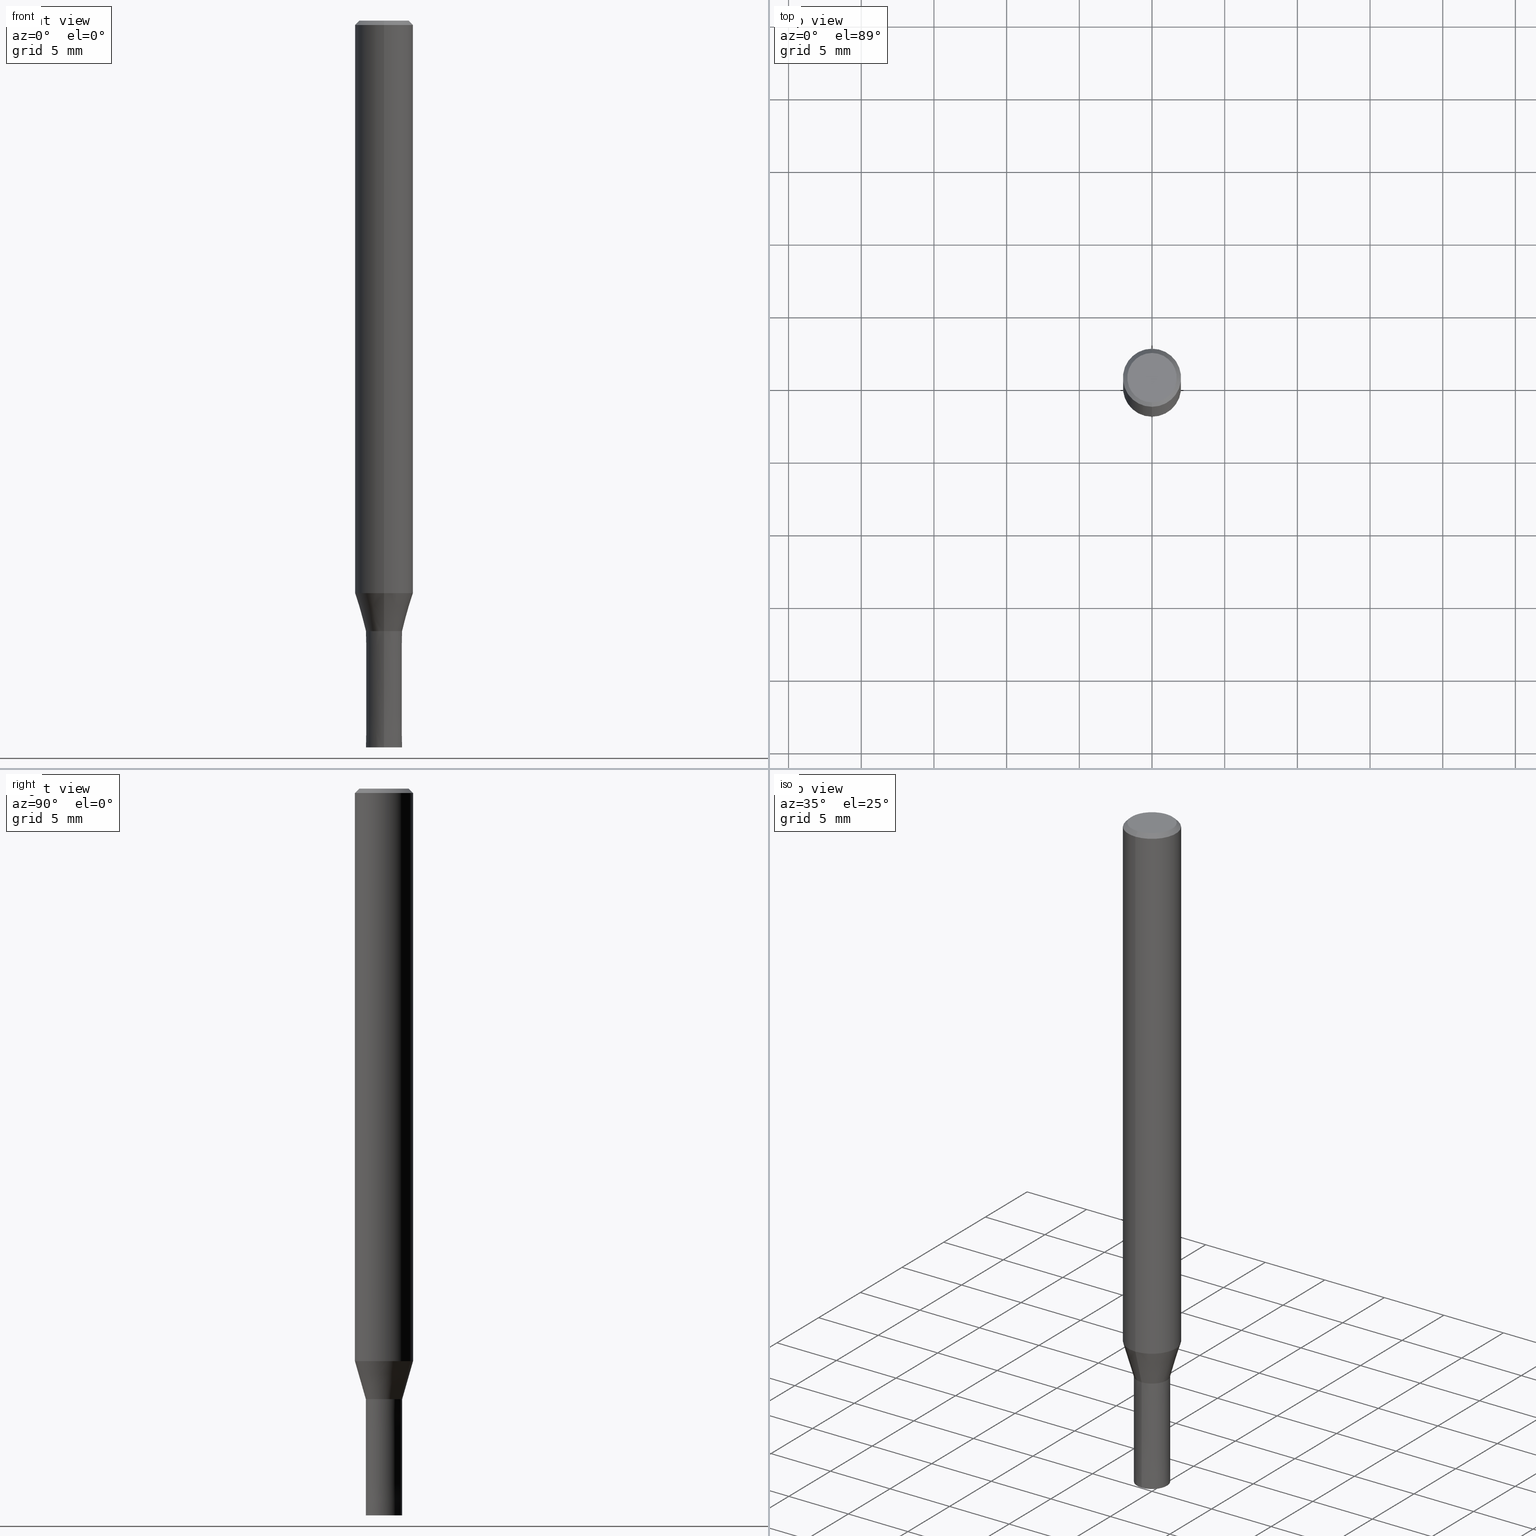
[diagram: canonical four-view strip — front | top / right | iso, engineering-drawing reading convention]
A machine part, canonical four-view strip (front | top / right | iso — engineering-drawing reading convention). The complete STEP part file that produces these views, byte-faithful:
ISO-10303-21;
HEADER;
FILE_DESCRIPTION(('no description'),'unknown implementation level');
FILE_NAME('CZS4025-0800-Huellk.stp','  ',('CIMSOURCE GmbH'),('CADClick - KiM GmbH - www.kimweb.de'),'unknown preprocess','ACIS','unknown authorization');
FILE_SCHEMA(('automotive_design'));
ENDSEC;
DATA;
#1=MECHANICAL_DESIGN_GEOMETRIC_PRESENTATION_REPRESENTATION(' ',(#14,#15,#16,#17,#18,#19,#20,#21,#22,#23,#24,#25,#26,#27,#28,#29,#30,#31,#32,#33,#34,#35,#36,#37,#38,#39,#40,#41,#42,#43,#44,#45,#46,#47,#48,#49,#50,#51,#52,#53,#54,#55,#56,#57,#58,#59,#60,#61,#62,#63,#64),#10);
#2=PRODUCT_DEFINITION_CONTEXT('',#65,'design');
#3=APPLICATION_PROTOCOL_DEFINITION('INTERNATIONAL STANDARD','automotive_design',1994,#65);
#4=PRODUCT_CATEGORY_RELATIONSHIP('NONE','NONE',#66,#67);
#5=SHAPE_DEFINITION_REPRESENTATION(#68,#69);
#6=PRODUCT_DEFINITION_CONTEXT('',#70,'design');
#7=APPLICATION_PROTOCOL_DEFINITION('INTERNATIONAL STANDARD','automotive_design',1994,#70);
#8=PRODUCT_CATEGORY_RELATIONSHIP('NONE','NONE',#71,#72);
#9=SHAPE_DEFINITION_REPRESENTATION(#73,#74);
#10= (GEOMETRIC_REPRESENTATION_CONTEXT(3)GLOBAL_UNCERTAINTY_ASSIGNED_CONTEXT((#77))GLOBAL_UNIT_ASSIGNED_CONTEXT((#79,#80,#81))REPRESENTATION_CONTEXT('NONE','WORKSPACE'));
#14=STYLED_ITEM('',(#83),#84);
#15=STYLED_ITEM('',(#85),#86);
#16=STYLED_ITEM('',(#87),#88);
#17=STYLED_ITEM('',(#89),#90);
#18=STYLED_ITEM('',(#91),#92);
#19=STYLED_ITEM('',(#93),#94);
#20=STYLED_ITEM('',(#95),#96);
#21=STYLED_ITEM('',(#97),#98);
#22=STYLED_ITEM('',(#99),#100);
#23=STYLED_ITEM('',(#101),#102);
#24=STYLED_ITEM('',(#103),#104);
#25=STYLED_ITEM('',(#105),#106);
#26=STYLED_ITEM('',(#107),#108);
#27=STYLED_ITEM('',(#109),#110);
#28=STYLED_ITEM('',(#111),#112);
#29=STYLED_ITEM('',(#113),#114);
#30=STYLED_ITEM('',(#115),#116);
#31=STYLED_ITEM('',(#117),#118);
#32=STYLED_ITEM('',(#119),#120);
#33=STYLED_ITEM('',(#121),#122);
#34=STYLED_ITEM('',(#123),#124);
#35=STYLED_ITEM('',(#125),#126);
#36=STYLED_ITEM('',(#127),#128);
#37=STYLED_ITEM('',(#129),#130);
#38=STYLED_ITEM('',(#131),#132);
#39=STYLED_ITEM('',(#133),#134);
#40=STYLED_ITEM('',(#135),#136);
#41=STYLED_ITEM('',(#137),#138);
#42=STYLED_ITEM('',(#139),#140);
#43=STYLED_ITEM('',(#141),#142);
#44=STYLED_ITEM('',(#143),#144);
#45=STYLED_ITEM('',(#145),#146);
#46=STYLED_ITEM('',(#147),#148);
#47=STYLED_ITEM('',(#149),#150);
#48=STYLED_ITEM('',(#151),#152);
#49=STYLED_ITEM('',(#153),#154);
#50=STYLED_ITEM('',(#155),#156);
#51=STYLED_ITEM('',(#157),#158);
#52=STYLED_ITEM('',(#159),#160);
#53=STYLED_ITEM('',(#161),#162);
#54=STYLED_ITEM('',(#163),#164);
#55=STYLED_ITEM('',(#165),#166);
#56=STYLED_ITEM('',(#167),#168);
#57=STYLED_ITEM('',(#169),#170);
#58=STYLED_ITEM('',(#171),#172);
#59=STYLED_ITEM('',(#173),#174);
#60=STYLED_ITEM('',(#175),#176);
#61=STYLED_ITEM('',(#177),#178);
#62=STYLED_ITEM('',(#179),#180);
#63=STYLED_ITEM('',(#181),#182);
#64=STYLED_ITEM('',(#183),#184);
#65=APPLICATION_CONTEXT(' ');
#66=PRODUCT_CATEGORY('part','NONE');
#67=PRODUCT_RELATED_PRODUCT_CATEGORY('detail',' ',(#185));
#68=PRODUCT_DEFINITION_SHAPE('NONE','NONE',#186);
#69=ADVANCED_BREP_SHAPE_REPRESENTATION('1',(#108,#187),#10);
#70=APPLICATION_CONTEXT(' ');
#71=PRODUCT_CATEGORY('part','NONE');
#72=PRODUCT_RELATED_PRODUCT_CATEGORY('detail',' ',(#188));
#73=PRODUCT_DEFINITION_SHAPE('NONE','NONE',#189);
#74=ADVANCED_BREP_SHAPE_REPRESENTATION('2',(#178,#190),#10);
#77=UNCERTAINTY_MEASURE_WITH_UNIT(LENGTH_MEASURE(1.0E-006),#79,'','');
#79= (CONVERSION_BASED_UNIT('MILLIMETRE',#193)LENGTH_UNIT()NAMED_UNIT(#196));
#80= (NAMED_UNIT(#198)PLANE_ANGLE_UNIT()SI_UNIT($,.RADIAN.));
#81= (NAMED_UNIT(#198)SOLID_ANGLE_UNIT()SI_UNIT($,.STERADIAN.));
#83=PRESENTATION_STYLE_ASSIGNMENT((#204));
#84=VERTEX_POINT('',#205);
#85=PRESENTATION_STYLE_ASSIGNMENT((#206));
#86=EDGE_CURVE('',#114,#98,#207,.T.);
#87=PRESENTATION_STYLE_ASSIGNMENT((#208));
#88=VERTEX_POINT('',#209);
#89=PRESENTATION_STYLE_ASSIGNMENT((#210));
#90=EDGE_CURVE('',#114,#142,#211,.T.);
#91=PRESENTATION_STYLE_ASSIGNMENT((#212));
#92=EDGE_CURVE('',#84,#88,#213,.T.);
#93=PRESENTATION_STYLE_ASSIGNMENT((#214));
#94=VERTEX_POINT('',#215);
#95=PRESENTATION_STYLE_ASSIGNMENT((#216));
#96=EDGE_CURVE('',#94,#134,#217,.T.);
#97=PRESENTATION_STYLE_ASSIGNMENT((#218));
#98=VERTEX_POINT('',#219);
#99=PRESENTATION_STYLE_ASSIGNMENT((#220));
#100=EDGE_CURVE('',#134,#94,#221,.T.);
#101=PRESENTATION_STYLE_ASSIGNMENT((#222));
#102=EDGE_CURVE('',#140,#142,#223,.T.);
#103=PRESENTATION_STYLE_ASSIGNMENT((#224));
#104=EDGE_CURVE('',#98,#94,#225,.T.);
#105=PRESENTATION_STYLE_ASSIGNMENT((#226));
#106=EDGE_CURVE('',#160,#88,#227,.T.);
#107=PRESENTATION_STYLE_ASSIGNMENT((#228));
#108=MANIFOLD_SOLID_BREP('1',#229);
#109=PRESENTATION_STYLE_ASSIGNMENT((#230));
#110=EDGE_CURVE('',#88,#160,#231,.T.);
#111=PRESENTATION_STYLE_ASSIGNMENT((#232));
#112=ADVANCED_FACE('',(#233),#234,.T.);
#113=PRESENTATION_STYLE_ASSIGNMENT((#235));
#114=VERTEX_POINT('',#236);
#115=PRESENTATION_STYLE_ASSIGNMENT((#237));
#116=EDGE_CURVE('',#144,#84,#238,.T.);
#117=PRESENTATION_STYLE_ASSIGNMENT((#239));
#118=ADVANCED_FACE('',(#240),#241,.T.);
#119=PRESENTATION_STYLE_ASSIGNMENT((#242));
#120=VERTEX_POINT('',#243);
#121=PRESENTATION_STYLE_ASSIGNMENT((#244));
#122=ADVANCED_FACE('',(#245,#246),#247,.T.);
#123=PRESENTATION_STYLE_ASSIGNMENT((#248));
#124=VERTEX_POINT('',#249);
#125=PRESENTATION_STYLE_ASSIGNMENT((#250));
#126=ADVANCED_FACE('',(#251),#252,.T.);
#127=PRESENTATION_STYLE_ASSIGNMENT((#253));
#128=VERTEX_POINT('',#254);
#129=PRESENTATION_STYLE_ASSIGNMENT((#255));
#130=EDGE_CURVE('',#84,#144,#256,.T.);
#131=PRESENTATION_STYLE_ASSIGNMENT((#257));
#132=EDGE_CURVE('',#120,#124,#258,.T.);
#133=PRESENTATION_STYLE_ASSIGNMENT((#259));
#134=VERTEX_POINT('',#260);
#135=PRESENTATION_STYLE_ASSIGNMENT((#261));
#136=EDGE_CURVE('',#128,#164,#262,.T.);
#137=PRESENTATION_STYLE_ASSIGNMENT((#263));
#138=ADVANCED_FACE('',(#264),#265,.T.);
#139=PRESENTATION_STYLE_ASSIGNMENT((#266));
#140=VERTEX_POINT('',#267);
#141=PRESENTATION_STYLE_ASSIGNMENT((#268));
#142=VERTEX_POINT('',#269);
#143=PRESENTATION_STYLE_ASSIGNMENT((#270));
#144=VERTEX_POINT('',#271);
#145=PRESENTATION_STYLE_ASSIGNMENT((#272));
#146=EDGE_CURVE('',#120,#164,#273,.T.);
#147=PRESENTATION_STYLE_ASSIGNMENT((#274));
#148=ADVANCED_FACE('',(#275),#276,.T.);
#149=PRESENTATION_STYLE_ASSIGNMENT((#277));
#150=ADVANCED_FACE('',(#278),#279,.T.);
#151=PRESENTATION_STYLE_ASSIGNMENT((#280));
#152=EDGE_CURVE('',#160,#144,#281,.T.);
#153=PRESENTATION_STYLE_ASSIGNMENT((#282));
#154=EDGE_CURVE('',#140,#98,#283,.T.);
#155=PRESENTATION_STYLE_ASSIGNMENT((#284));
#156=ADVANCED_FACE('',(#285),#286,.T.);
#157=PRESENTATION_STYLE_ASSIGNMENT((#287));
#158=ADVANCED_FACE('',(#288),#289,.T.);
#159=PRESENTATION_STYLE_ASSIGNMENT((#290));
#160=VERTEX_POINT('',#291);
#161=PRESENTATION_STYLE_ASSIGNMENT((#292));
#162=EDGE_CURVE('',#98,#140,#293,.T.);
#163=PRESENTATION_STYLE_ASSIGNMENT((#294));
#164=VERTEX_POINT('',#295);
#165=PRESENTATION_STYLE_ASSIGNMENT((#296));
#166=EDGE_CURVE('',#124,#120,#297,.T.);
#167=PRESENTATION_STYLE_ASSIGNMENT((#298));
#168=ADVANCED_FACE('',(#299),#300,.T.);
#169=PRESENTATION_STYLE_ASSIGNMENT((#301));
#170=ADVANCED_FACE('',(#302),#303,.T.);
#171=PRESENTATION_STYLE_ASSIGNMENT((#304));
#172=ADVANCED_FACE('',(#305),#306,.T.);
#173=PRESENTATION_STYLE_ASSIGNMENT((#307));
#174=EDGE_CURVE('',#128,#124,#308,.T.);
#175=PRESENTATION_STYLE_ASSIGNMENT((#309));
#176=EDGE_CURVE('',#164,#128,#310,.T.);
#177=PRESENTATION_STYLE_ASSIGNMENT((#311));
#178=MANIFOLD_SOLID_BREP('2',#312);
#179=PRESENTATION_STYLE_ASSIGNMENT((#313));
#180=ADVANCED_FACE('',(#314),#315,.T.);
#181=PRESENTATION_STYLE_ASSIGNMENT((#316));
#182=EDGE_CURVE('',#142,#114,#317,.T.);
#183=PRESENTATION_STYLE_ASSIGNMENT((#318));
#184=EDGE_CURVE('',#134,#140,#319,.T.);
#185=PRODUCT('1','1','PART-1-DESC',(#320));
#186=PRODUCT_DEFINITION('NONE','NONE',#321,#2);
#187=AXIS2_PLACEMENT_3D('',#322,#323,#324);
#188=PRODUCT('2','2','PART-2-DESC',(#325));
#189=PRODUCT_DEFINITION('NONE','NONE',#326,#6);
#190=AXIS2_PLACEMENT_3D('',#327,#328,#329);
#193=LENGTH_MEASURE_WITH_UNIT(LENGTH_MEASURE(1.0),#330);
#196=DIMENSIONAL_EXPONENTS(1.0,0.0,0.0,0.0,0.0,0.0,0.0);
#198=DIMENSIONAL_EXPONENTS(0.0,0.0,0.0,0.0,0.0,0.0,0.0);
#204=POINT_STYLE(' ',#331,POSITIVE_LENGTH_MEASURE(1.0E-006),#332);
#205=CARTESIAN_POINT('',(0.0,1.99995,-39.384));
#206=CURVE_STYLE('',#333,POSITIVE_LENGTH_MEASURE(1.0E-006),#334);
#207=LINE('',#335,#336);
#208=POINT_STYLE(' ',#337,POSITIVE_LENGTH_MEASURE(1.0E-006),#338);
#209=CARTESIAN_POINT('',(0.0,1.24995,-42.0));
#210=CURVE_STYLE('',#339,POSITIVE_LENGTH_MEASURE(1.0E-006),#340);
#211=CIRCLE('',#341,1.7);
#212=CURVE_STYLE('',#342,POSITIVE_LENGTH_MEASURE(1.0E-006),#343);
#213=LINE('',#344,#345);
#214=POINT_STYLE(' ',#346,POSITIVE_LENGTH_MEASURE(1.0E-006),#347);
#215=CARTESIAN_POINT('',(0.0,2.0,-39.384));
#216=CURVE_STYLE('',#348,POSITIVE_LENGTH_MEASURE(1.0E-006),#349);
#217=CIRCLE('',#350,2.0);
#218=POINT_STYLE(' ',#351,POSITIVE_LENGTH_MEASURE(1.0E-006),#352);
#219=CARTESIAN_POINT('',(0.0,2.0,-0.299999999999997));
#220=CURVE_STYLE('',#353,POSITIVE_LENGTH_MEASURE(1.0E-006),#354);
#221=CIRCLE('',#355,2.0);
#222=CURVE_STYLE('',#356,POSITIVE_LENGTH_MEASURE(1.0E-006),#357);
#223=LINE('',#358,#359);
#224=CURVE_STYLE('',#360,POSITIVE_LENGTH_MEASURE(1.0E-006),#361);
#225=LINE('',#362,#363);
#226=CURVE_STYLE('',#364,POSITIVE_LENGTH_MEASURE(1.0E-006),#365);
#227=CIRCLE('',#366,1.24995);
#228=SURFACE_STYLE_USAGE(.BOTH.,#367);
#229=CLOSED_SHELL('',(#138,#172,#126,#122,#180,#112,#148,#158,#150));
#230=CURVE_STYLE('',#368,POSITIVE_LENGTH_MEASURE(1.0E-006),#369);
#231=CIRCLE('',#370,1.24995);
#232=SURFACE_STYLE_USAGE(.BOTH.,#371);
#233=FACE_OUTER_BOUND('',#372,.T.);
#234=CONICAL_SURFACE('',#373,1.85,0.785398163397453);
#235=POINT_STYLE(' ',#374,POSITIVE_LENGTH_MEASURE(1.0E-006),#375);
#236=CARTESIAN_POINT('',(0.0,1.7,0.0));
#237=CURVE_STYLE('',#376,POSITIVE_LENGTH_MEASURE(1.0E-006),#377);
#238=CIRCLE('',#378,1.99995);
#239=SURFACE_STYLE_USAGE(.BOTH.,#379);
#240=FACE_OUTER_BOUND('',#380,.T.);
#241=PLANE('',#381);
#242=POINT_STYLE(' ',#382,POSITIVE_LENGTH_MEASURE(1.0E-006),#383);
#243=CARTESIAN_POINT('',(0.0,1.2499,-42.0));
#244=SURFACE_STYLE_USAGE(.BOTH.,#384);
#245=FACE_OUTER_BOUND('',#385,.T.);
#246=FACE_BOUND('',#386,.T.);
#247=PLANE('',#387);
#248=POINT_STYLE(' ',#388,POSITIVE_LENGTH_MEASURE(1.0E-006),#389);
#249=CARTESIAN_POINT('',(1.53063548164259E-016,-1.2499,-42.0));
#250=SURFACE_STYLE_USAGE(.BOTH.,#390);
#251=FACE_OUTER_BOUND('',#391,.T.);
#252=CONICAL_SURFACE('',#392,1.85,0.785398163397453);
#253=POINT_STYLE(' ',#393,POSITIVE_LENGTH_MEASURE(1.0E-006),#394);
#254=CARTESIAN_POINT('',(1.53075794227797E-016,-1.25,-50.0));
#255=CURVE_STYLE('',#395,POSITIVE_LENGTH_MEASURE(1.0E-006),#396);
#256=CIRCLE('',#397,1.99995);
#257=CURVE_STYLE('',#398,POSITIVE_LENGTH_MEASURE(1.0E-006),#399);
#258=CIRCLE('',#400,1.2499);
#259=POINT_STYLE(' ',#401,POSITIVE_LENGTH_MEASURE(1.0E-006),#402);
#260=CARTESIAN_POINT('',(2.44921270764475E-016,-2.0,-39.384));
#261=CURVE_STYLE('',#403,POSITIVE_LENGTH_MEASURE(1.0E-006),#404);
#262=CIRCLE('',#405,1.25);
#263=SURFACE_STYLE_USAGE(.BOTH.,#406);
#264=FACE_OUTER_BOUND('',#407,.T.);
#265=CONICAL_SURFACE('',#408,1.62495,0.279208199033747);
#266=POINT_STYLE(' ',#409,POSITIVE_LENGTH_MEASURE(1.0E-006),#410);
#267=CARTESIAN_POINT('',(2.44921270764475E-016,-2.0,-0.299999999999997));
#268=POINT_STYLE(' ',#411,POSITIVE_LENGTH_MEASURE(1.0E-006),#412);
#269=CARTESIAN_POINT('',(2.08183080149804E-016,-1.7,0.0));
#270=POINT_STYLE(' ',#413,POSITIVE_LENGTH_MEASURE(1.0E-006),#414);
#271=CARTESIAN_POINT('',(2.44915147732706E-016,-1.99995,-39.384));
#272=CURVE_STYLE('',#415,POSITIVE_LENGTH_MEASURE(1.0E-006),#416);
#273=LINE('',#417,#418);
#274=SURFACE_STYLE_USAGE(.BOTH.,#419);
#275=FACE_OUTER_BOUND('',#420,.T.);
#276=CYLINDRICAL_SURFACE('',#421,2.0);
#277=SURFACE_STYLE_USAGE(.BOTH.,#422);
#278=FACE_OUTER_BOUND('',#423,.T.);
#279=PLANE('',#424);
#280=CURVE_STYLE('',#425,POSITIVE_LENGTH_MEASURE(1.0E-006),#426);
#281=LINE('',#427,#428);
#282=CURVE_STYLE('',#429,POSITIVE_LENGTH_MEASURE(1.0E-006),#430);
#283=CIRCLE('',#431,2.0);
#284=SURFACE_STYLE_USAGE(.BOTH.,#432);
#285=FACE_OUTER_BOUND('',#433,.T.);
#286=PLANE('',#434);
#287=SURFACE_STYLE_USAGE(.BOTH.,#435);
#288=FACE_OUTER_BOUND('',#436,.T.);
#289=CONICAL_SURFACE('',#437,1.62495,0.279208199033747);
#290=POINT_STYLE(' ',#438,POSITIVE_LENGTH_MEASURE(1.0E-006),#439);
#291=CARTESIAN_POINT('',(1.53069671196028E-016,-1.24995,-42.0));
#292=CURVE_STYLE('',#440,POSITIVE_LENGTH_MEASURE(1.0E-006),#441);
#293=CIRCLE('',#442,2.0);
#294=POINT_STYLE(' ',#443,POSITIVE_LENGTH_MEASURE(1.0E-006),#444);
#295=CARTESIAN_POINT('',(0.0,1.25,-50.0));
#296=CURVE_STYLE('',#445,POSITIVE_LENGTH_MEASURE(1.0E-006),#446);
#297=CIRCLE('',#447,1.2499);
#298=SURFACE_STYLE_USAGE(.BOTH.,#448);
#299=FACE_OUTER_BOUND('',#449,.T.);
#300=CONICAL_SURFACE('',#450,1.24995,1.24999999993476E-005);
#301=SURFACE_STYLE_USAGE(.BOTH.,#451);
#302=FACE_OUTER_BOUND('',#452,.T.);
#303=CONICAL_SURFACE('',#453,1.24995,1.24999999993476E-005);
#304=SURFACE_STYLE_USAGE(.BOTH.,#454);
#305=FACE_OUTER_BOUND('',#455,.T.);
#306=CYLINDRICAL_SURFACE('',#456,2.0);
#307=CURVE_STYLE('',#457,POSITIVE_LENGTH_MEASURE(1.0E-006),#458);
#308=LINE('',#459,#460);
#309=CURVE_STYLE('',#461,POSITIVE_LENGTH_MEASURE(1.0E-006),#462);
#310=CIRCLE('',#463,1.25);
#311=SURFACE_STYLE_USAGE(.BOTH.,#464);
#312=CLOSED_SHELL('',(#170,#118,#168,#156));
#313=SURFACE_STYLE_USAGE(.BOTH.,#465);
#314=FACE_OUTER_BOUND('',#466,.T.);
#315=PLANE('',#467);
#316=CURVE_STYLE('',#468,POSITIVE_LENGTH_MEASURE(1.0E-006),#469);
#317=CIRCLE('',#470,1.7);
#318=CURVE_STYLE('',#471,POSITIVE_LENGTH_MEASURE(1.0E-006),#472);
#319=LINE('',#473,#474);
#320=PRODUCT_CONTEXT('',#65,'mechanical');
#321=PRODUCT_DEFINITION_FORMATION_WITH_SPECIFIED_SOURCE(' ','NONE',#185,.NOT_KNOWN.);
#322=CARTESIAN_POINT('',(0.0,0.0,0.0));
#323=DIRECTION('',(0.0,0.0,1.0));
#324=DIRECTION('',(1.0,0.0,0.0));
#325=PRODUCT_CONTEXT('',#70,'mechanical');
#326=PRODUCT_DEFINITION_FORMATION_WITH_SPECIFIED_SOURCE(' ','NONE',#188,.NOT_KNOWN.);
#327=CARTESIAN_POINT('',(0.0,0.0,0.0));
#328=DIRECTION('',(0.0,0.0,1.0));
#329=DIRECTION('',(1.0,0.0,0.0));
#330= (NAMED_UNIT(#196)LENGTH_UNIT()SI_UNIT(.MILLI.,.METRE.));
#331=PRE_DEFINED_MARKER('');
#332=COLOUR_RGB('',0.498039215803146,0.498039215803146,0.498039215803146);
#333=DRAUGHTING_PRE_DEFINED_CURVE_FONT('continuous');
#334=COLOUR_RGB('',0.498039215803146,0.498039215803146,0.498039215803146);
#335=CARTESIAN_POINT('',(-2.2655217545714E-016,1.85,-0.149999999999999));
#336=VECTOR('',#476,1.0);
#337=PRE_DEFINED_MARKER('');
#338=COLOUR_RGB('',0.498039215803146,0.498039215803146,0.498039215803146);
#339=DRAUGHTING_PRE_DEFINED_CURVE_FONT('continuous');
#340=COLOUR_RGB('',0.498039215803146,0.498039215803146,0.498039215803146);
#341=AXIS2_PLACEMENT_3D('',#477,#478,#479);
#342=DRAUGHTING_PRE_DEFINED_CURVE_FONT('continuous');
#343=COLOUR_RGB('',0.498039215803146,0.498039215803146,0.498039215803146);
#344=CARTESIAN_POINT('',(-1.98992409464367E-016,1.62495,-40.692));
#345=VECTOR('',#480,1.0);
#346=PRE_DEFINED_MARKER('');
#347=COLOUR_RGB('',0.498039215803146,0.498039215803146,0.498039215803146);
#348=DRAUGHTING_PRE_DEFINED_CURVE_FONT('continuous');
#349=COLOUR_RGB('',0.498039215803146,0.498039215803146,0.498039215803146);
#350=AXIS2_PLACEMENT_3D('',#481,#482,#483);
#351=PRE_DEFINED_MARKER('');
#352=COLOUR_RGB('',0.498039215803146,0.498039215803146,0.498039215803146);
#353=DRAUGHTING_PRE_DEFINED_CURVE_FONT('continuous');
#354=COLOUR_RGB('',0.498039215803146,0.498039215803146,0.498039215803146);
#355=AXIS2_PLACEMENT_3D('',#484,#485,#486);
#356=DRAUGHTING_PRE_DEFINED_CURVE_FONT('continuous');
#357=COLOUR_RGB('',0.498039215803146,0.498039215803146,0.498039215803146);
#358=CARTESIAN_POINT('',(2.2655217545714E-016,-1.85,-0.149999999999999));
#359=VECTOR('',#487,1.0);
#360=DRAUGHTING_PRE_DEFINED_CURVE_FONT('continuous');
#361=COLOUR_RGB('',0.498039215803146,0.498039215803146,0.498039215803146);
#362=CARTESIAN_POINT('',(-2.44921270764475E-016,2.0,-19.842));
#363=VECTOR('',#488,1.0);
#364=DRAUGHTING_PRE_DEFINED_CURVE_FONT('continuous');
#365=COLOUR_RGB('',0.498039215803146,0.498039215803146,0.498039215803146);
#366=AXIS2_PLACEMENT_3D('',#489,#490,#491);
#367=SURFACE_SIDE_STYLE('',(#492));
#368=DRAUGHTING_PRE_DEFINED_CURVE_FONT('continuous');
#369=COLOUR_RGB('',0.498039215803146,0.498039215803146,0.498039215803146);
#370=AXIS2_PLACEMENT_3D('',#493,#494,#495);
#371=SURFACE_SIDE_STYLE('',(#496));
#372=EDGE_LOOP('',(#497,#498,#499,#500));
#373=AXIS2_PLACEMENT_3D('',#501,#502,#503);
#374=PRE_DEFINED_MARKER('');
#375=COLOUR_RGB('',0.498039215803146,0.498039215803146,0.498039215803146);
#376=DRAUGHTING_PRE_DEFINED_CURVE_FONT('continuous');
#377=COLOUR_RGB('',0.498039215803146,0.498039215803146,0.498039215803146);
#378=AXIS2_PLACEMENT_3D('',#504,#505,#506);
#379=SURFACE_SIDE_STYLE('',(#507));
#380=EDGE_LOOP('',(#508,#509));
#381=AXIS2_PLACEMENT_3D('',#510,#511,#512);
#382=PRE_DEFINED_MARKER('');
#383=COLOUR_RGB('',0.800000011920929,0.800000011920929,0.800000011920929);
#384=SURFACE_SIDE_STYLE('',(#513));
#385=EDGE_LOOP('',(#514,#515));
#386=EDGE_LOOP('',(#516,#517));
#387=AXIS2_PLACEMENT_3D('',#518,#519,#520);
#388=PRE_DEFINED_MARKER('');
#389=COLOUR_RGB('',0.800000011920929,0.800000011920929,0.800000011920929);
#390=SURFACE_SIDE_STYLE('',(#521));
#391=EDGE_LOOP('',(#522,#523,#524,#525));
#392=AXIS2_PLACEMENT_3D('',#526,#527,#528);
#393=PRE_DEFINED_MARKER('');
#394=COLOUR_RGB('',0.800000011920929,0.800000011920929,0.800000011920929);
#395=DRAUGHTING_PRE_DEFINED_CURVE_FONT('continuous');
#396=COLOUR_RGB('',0.498039215803146,0.498039215803146,0.498039215803146);
#397=AXIS2_PLACEMENT_3D('',#529,#530,#531);
#398=DRAUGHTING_PRE_DEFINED_CURVE_FONT('continuous');
#399=COLOUR_RGB('',0.800000011920929,0.800000011920929,0.800000011920929);
#400=AXIS2_PLACEMENT_3D('',#532,#533,#534);
#401=PRE_DEFINED_MARKER('');
#402=COLOUR_RGB('',0.498039215803146,0.498039215803146,0.498039215803146);
#403=DRAUGHTING_PRE_DEFINED_CURVE_FONT('continuous');
#404=COLOUR_RGB('',0.800000011920929,0.800000011920929,0.800000011920929);
#405=AXIS2_PLACEMENT_3D('',#535,#536,#537);
#406=SURFACE_SIDE_STYLE('',(#538));
#407=EDGE_LOOP('',(#539,#540,#541,#542));
#408=AXIS2_PLACEMENT_3D('',#543,#544,#545);
#409=PRE_DEFINED_MARKER('');
#410=COLOUR_RGB('',0.498039215803146,0.498039215803146,0.498039215803146);
#411=PRE_DEFINED_MARKER('');
#412=COLOUR_RGB('',0.498039215803146,0.498039215803146,0.498039215803146);
#413=PRE_DEFINED_MARKER('');
#414=COLOUR_RGB('',0.498039215803146,0.498039215803146,0.498039215803146);
#415=DRAUGHTING_PRE_DEFINED_CURVE_FONT('continuous');
#416=COLOUR_RGB('',0.800000011920929,0.800000011920929,0.800000011920929);
#417=CARTESIAN_POINT('',(-1.53069671196028E-016,1.24995,-46.0));
#418=VECTOR('',#546,1.0);
#419=SURFACE_SIDE_STYLE('',(#547));
#420=EDGE_LOOP('',(#548,#549,#550,#551));
#421=AXIS2_PLACEMENT_3D('',#552,#553,#554);
#422=SURFACE_SIDE_STYLE('',(#555));
#423=EDGE_LOOP('',(#556,#557));
#424=AXIS2_PLACEMENT_3D('',#558,#559,#560);
#425=DRAUGHTING_PRE_DEFINED_CURVE_FONT('continuous');
#426=COLOUR_RGB('',0.498039215803146,0.498039215803146,0.498039215803146);
#427=CARTESIAN_POINT('',(1.98992409464367E-016,-1.62495,-40.692));
#428=VECTOR('',#561,1.0);
#429=DRAUGHTING_PRE_DEFINED_CURVE_FONT('continuous');
#430=COLOUR_RGB('',0.498039215803146,0.498039215803146,0.498039215803146);
#431=AXIS2_PLACEMENT_3D('',#562,#563,#564);
#432=SURFACE_SIDE_STYLE('',(#565));
#433=EDGE_LOOP('',(#566,#567));
#434=AXIS2_PLACEMENT_3D('',#568,#569,#570);
#435=SURFACE_SIDE_STYLE('',(#571));
#436=EDGE_LOOP('',(#572,#573,#574,#575));
#437=AXIS2_PLACEMENT_3D('',#576,#577,#578);
#438=PRE_DEFINED_MARKER('');
#439=COLOUR_RGB('',0.498039215803146,0.498039215803146,0.498039215803146);
#440=DRAUGHTING_PRE_DEFINED_CURVE_FONT('continuous');
#441=COLOUR_RGB('',0.498039215803146,0.498039215803146,0.498039215803146);
#442=AXIS2_PLACEMENT_3D('',#579,#580,#581);
#443=PRE_DEFINED_MARKER('');
#444=COLOUR_RGB('',0.800000011920929,0.800000011920929,0.800000011920929);
#445=DRAUGHTING_PRE_DEFINED_CURVE_FONT('continuous');
#446=COLOUR_RGB('',0.800000011920929,0.800000011920929,0.800000011920929);
#447=AXIS2_PLACEMENT_3D('',#582,#583,#584);
#448=SURFACE_SIDE_STYLE('',(#585));
#449=EDGE_LOOP('',(#586,#587,#588,#589));
#450=AXIS2_PLACEMENT_3D('',#590,#591,#592);
#451=SURFACE_SIDE_STYLE('',(#593));
#452=EDGE_LOOP('',(#594,#595,#596,#597));
#453=AXIS2_PLACEMENT_3D('',#598,#599,#600);
#454=SURFACE_SIDE_STYLE('',(#601));
#455=EDGE_LOOP('',(#602,#603,#604,#605));
#456=AXIS2_PLACEMENT_3D('',#606,#607,#608);
#457=DRAUGHTING_PRE_DEFINED_CURVE_FONT('continuous');
#458=COLOUR_RGB('',0.800000011920929,0.800000011920929,0.800000011920929);
#459=CARTESIAN_POINT('',(1.53069671196028E-016,-1.24995,-46.0));
#460=VECTOR('',#609,1.0);
#461=DRAUGHTING_PRE_DEFINED_CURVE_FONT('continuous');
#462=COLOUR_RGB('',0.800000011920929,0.800000011920929,0.800000011920929);
#463=AXIS2_PLACEMENT_3D('',#610,#611,#612);
#464=SURFACE_SIDE_STYLE('',(#613));
#465=SURFACE_SIDE_STYLE('',(#614));
#466=EDGE_LOOP('',(#615,#616));
#467=AXIS2_PLACEMENT_3D('',#617,#618,#619);
#468=DRAUGHTING_PRE_DEFINED_CURVE_FONT('continuous');
#469=COLOUR_RGB('',0.498039215803146,0.498039215803146,0.498039215803146);
#470=AXIS2_PLACEMENT_3D('',#620,#621,#622);
#471=DRAUGHTING_PRE_DEFINED_CURVE_FONT('continuous');
#472=COLOUR_RGB('',0.498039215803146,0.498039215803146,0.498039215803146);
#473=CARTESIAN_POINT('',(2.44921270764475E-016,-2.0,-19.842));
#474=VECTOR('',#623,1.0);
#476=DIRECTION('',(-8.6592745707194E-017,0.707106781186551,-0.707106781186544));
#477=CARTESIAN_POINT('',(0.0,0.0,0.0));
#478=DIRECTION('',(0.0,0.0,-1.0));
#479=DIRECTION('',(0.0,1.0,0.0));
#480=DIRECTION('',(3.37494895041124E-017,-0.275594597388538,-0.961273955691222));
#481=CARTESIAN_POINT('',(0.0,0.0,-39.384));
#482=DIRECTION('',(0.0,0.0,-1.0));
#483=DIRECTION('',(0.0,1.0,0.0));
#484=CARTESIAN_POINT('',(0.0,0.0,-39.384));
#485=DIRECTION('',(0.0,0.0,-1.0));
#486=DIRECTION('',(0.0,1.0,0.0));
#487=DIRECTION('',(-8.6592745707194E-017,0.707106781186551,0.707106781186544));
#488=DIRECTION('',(0.0,0.0,-1.0));
#489=CARTESIAN_POINT('',(0.0,0.0,-42.0));
#490=DIRECTION('',(0.0,0.0,-1.0));
#491=DIRECTION('',(0.0,1.0,0.0));
#492=SURFACE_STYLE_FILL_AREA(#624);
#493=CARTESIAN_POINT('',(0.0,0.0,-42.0));
#494=DIRECTION('',(0.0,0.0,-1.0));
#495=DIRECTION('',(0.0,1.0,0.0));
#496=SURFACE_STYLE_FILL_AREA(#625);
#497=ORIENTED_EDGE('',*,*,#86,.T.);
#498=ORIENTED_EDGE('',*,*,#154,.F.);
#499=ORIENTED_EDGE('',*,*,#102,.T.);
#500=ORIENTED_EDGE('',*,*,#182,.T.);
#501=CARTESIAN_POINT('',(0.0,0.0,-0.149999999999999));
#502=DIRECTION('',(0.0,-0.0,-1.0));
#503=DIRECTION('',(0.0,1.0,0.0));
#504=CARTESIAN_POINT('',(0.0,0.0,-39.384));
#505=DIRECTION('',(0.0,0.0,-1.0));
#506=DIRECTION('',(0.0,1.0,0.0));
#507=SURFACE_STYLE_FILL_AREA(#626);
#508=ORIENTED_EDGE('',*,*,#132,.F.);
#509=ORIENTED_EDGE('',*,*,#166,.F.);
#510=CARTESIAN_POINT('',(0.0,0.62495,-42.0));
#511=DIRECTION('',(-0.0,0.0,1.0));
#512=DIRECTION('',(0.0,-1.0,0.0));
#513=SURFACE_STYLE_FILL_AREA(#627);
#514=ORIENTED_EDGE('',*,*,#96,.T.);
#515=ORIENTED_EDGE('',*,*,#100,.T.);
#516=ORIENTED_EDGE('',*,*,#130,.F.);
#517=ORIENTED_EDGE('',*,*,#116,.F.);
#518=CARTESIAN_POINT('',(0.0,1.0,-39.384));
#519=DIRECTION('',(0.0,0.0,-1.0));
#520=DIRECTION('',(0.0,1.0,0.0));
#521=SURFACE_STYLE_FILL_AREA(#628);
#522=ORIENTED_EDGE('',*,*,#86,.F.);
#523=ORIENTED_EDGE('',*,*,#90,.T.);
#524=ORIENTED_EDGE('',*,*,#102,.F.);
#525=ORIENTED_EDGE('',*,*,#162,.F.);
#526=CARTESIAN_POINT('',(0.0,0.0,-0.149999999999999));
#527=DIRECTION('',(0.0,-0.0,-1.0));
#528=DIRECTION('',(0.0,1.0,0.0));
#529=CARTESIAN_POINT('',(0.0,0.0,-39.384));
#530=DIRECTION('',(0.0,0.0,-1.0));
#531=DIRECTION('',(0.0,1.0,0.0));
#532=CARTESIAN_POINT('',(0.0,0.0,-42.0));
#533=DIRECTION('',(0.0,0.0,-1.0));
#534=DIRECTION('',(0.0,1.0,0.0));
#535=CARTESIAN_POINT('',(0.0,0.0,-50.0));
#536=DIRECTION('',(0.0,0.0,-1.0));
#537=DIRECTION('',(0.0,1.0,0.0));
#538=SURFACE_STYLE_FILL_AREA(#629);
#539=ORIENTED_EDGE('',*,*,#92,.F.);
#540=ORIENTED_EDGE('',*,*,#130,.T.);
#541=ORIENTED_EDGE('',*,*,#152,.F.);
#542=ORIENTED_EDGE('',*,*,#110,.F.);
#543=CARTESIAN_POINT('',(0.0,0.0,-40.692));
#544=DIRECTION('',(-0.0,-0.0,1.0));
#545=DIRECTION('',(0.0,1.0,0.0));
#546=DIRECTION('',(-1.53075794215821E-021,1.24999999990221E-005,-0.999999999921875));
#547=SURFACE_STYLE_FILL_AREA(#630);
#548=ORIENTED_EDGE('',*,*,#104,.T.);
#549=ORIENTED_EDGE('',*,*,#100,.F.);
#550=ORIENTED_EDGE('',*,*,#184,.T.);
#551=ORIENTED_EDGE('',*,*,#154,.T.);
#552=CARTESIAN_POINT('',(0.0,0.0,-19.842));
#553=DIRECTION('',(-0.0,-0.0,1.0));
#554=DIRECTION('',(0.0,1.0,0.0));
#555=SURFACE_STYLE_FILL_AREA(#631);
#556=ORIENTED_EDGE('',*,*,#110,.T.);
#557=ORIENTED_EDGE('',*,*,#106,.T.);
#558=CARTESIAN_POINT('',(0.0,0.624975,-42.0));
#559=DIRECTION('',(0.0,0.0,-1.0));
#560=DIRECTION('',(0.0,1.0,0.0));
#561=DIRECTION('',(3.37494895041124E-017,-0.275594597388538,0.961273955691222));
#562=CARTESIAN_POINT('',(0.0,0.0,-0.299999999999997));
#563=DIRECTION('',(0.0,0.0,-1.0));
#564=DIRECTION('',(0.0,1.0,0.0));
#565=SURFACE_STYLE_FILL_AREA(#632);
#566=ORIENTED_EDGE('',*,*,#176,.T.);
#567=ORIENTED_EDGE('',*,*,#136,.T.);
#568=CARTESIAN_POINT('',(0.0,0.6225,-50.0));
#569=DIRECTION('',(0.0,0.0,-1.0));
#570=DIRECTION('',(0.0,1.0,0.0));
#571=SURFACE_STYLE_FILL_AREA(#633);
#572=ORIENTED_EDGE('',*,*,#92,.T.);
#573=ORIENTED_EDGE('',*,*,#106,.F.);
#574=ORIENTED_EDGE('',*,*,#152,.T.);
#575=ORIENTED_EDGE('',*,*,#116,.T.);
#576=CARTESIAN_POINT('',(0.0,0.0,-40.692));
#577=DIRECTION('',(-0.0,-0.0,1.0));
#578=DIRECTION('',(0.0,1.0,0.0));
#579=CARTESIAN_POINT('',(0.0,0.0,-0.299999999999997));
#580=DIRECTION('',(0.0,0.0,-1.0));
#581=DIRECTION('',(0.0,1.0,0.0));
#582=CARTESIAN_POINT('',(0.0,0.0,-42.0));
#583=DIRECTION('',(0.0,0.0,-1.0));
#584=DIRECTION('',(0.0,1.0,0.0));
#585=SURFACE_STYLE_FILL_AREA(#634);
#586=ORIENTED_EDGE('',*,*,#146,.T.);
#587=ORIENTED_EDGE('',*,*,#136,.F.);
#588=ORIENTED_EDGE('',*,*,#174,.T.);
#589=ORIENTED_EDGE('',*,*,#166,.T.);
#590=CARTESIAN_POINT('',(0.0,0.0,-46.0));
#591=DIRECTION('',(0.0,-0.0,-1.0));
#592=DIRECTION('',(0.0,1.0,0.0));
#593=SURFACE_STYLE_FILL_AREA(#635);
#594=ORIENTED_EDGE('',*,*,#146,.F.);
#595=ORIENTED_EDGE('',*,*,#132,.T.);
#596=ORIENTED_EDGE('',*,*,#174,.F.);
#597=ORIENTED_EDGE('',*,*,#176,.F.);
#598=CARTESIAN_POINT('',(0.0,0.0,-46.0));
#599=DIRECTION('',(0.0,-0.0,-1.0));
#600=DIRECTION('',(0.0,1.0,0.0));
#601=SURFACE_STYLE_FILL_AREA(#636);
#602=ORIENTED_EDGE('',*,*,#104,.F.);
#603=ORIENTED_EDGE('',*,*,#162,.T.);
#604=ORIENTED_EDGE('',*,*,#184,.F.);
#605=ORIENTED_EDGE('',*,*,#96,.F.);
#606=CARTESIAN_POINT('',(0.0,0.0,-19.842));
#607=DIRECTION('',(-0.0,-0.0,1.0));
#608=DIRECTION('',(0.0,1.0,0.0));
#609=DIRECTION('',(-1.53075794215821E-021,1.24999999990221E-005,0.999999999921875));
#610=CARTESIAN_POINT('',(0.0,0.0,-50.0));
#611=DIRECTION('',(0.0,0.0,-1.0));
#612=DIRECTION('',(0.0,1.0,0.0));
#613=SURFACE_STYLE_FILL_AREA(#637);
#614=SURFACE_STYLE_FILL_AREA(#638);
#615=ORIENTED_EDGE('',*,*,#90,.F.);
#616=ORIENTED_EDGE('',*,*,#182,.F.);
#617=CARTESIAN_POINT('',(0.0,0.85,0.0));
#618=DIRECTION('',(-0.0,0.0,1.0));
#619=DIRECTION('',(0.0,-1.0,0.0));
#620=CARTESIAN_POINT('',(0.0,0.0,0.0));
#621=DIRECTION('',(0.0,0.0,-1.0));
#622=DIRECTION('',(0.0,1.0,0.0));
#623=DIRECTION('',(-0.0,-0.0,1.0));
#624=FILL_AREA_STYLE('',(#639));
#625=FILL_AREA_STYLE('',(#640));
#626=FILL_AREA_STYLE('',(#641));
#627=FILL_AREA_STYLE('',(#642));
#628=FILL_AREA_STYLE('',(#643));
#629=FILL_AREA_STYLE('',(#644));
#630=FILL_AREA_STYLE('',(#645));
#631=FILL_AREA_STYLE('',(#646));
#632=FILL_AREA_STYLE('',(#647));
#633=FILL_AREA_STYLE('',(#648));
#634=FILL_AREA_STYLE('',(#649));
#635=FILL_AREA_STYLE('',(#650));
#636=FILL_AREA_STYLE('',(#651));
#637=FILL_AREA_STYLE('',(#652));
#638=FILL_AREA_STYLE('',(#653));
#639=FILL_AREA_STYLE_COLOUR('',#654);
#640=FILL_AREA_STYLE_COLOUR('',#655);
#641=FILL_AREA_STYLE_COLOUR('',#656);
#642=FILL_AREA_STYLE_COLOUR('',#657);
#643=FILL_AREA_STYLE_COLOUR('',#658);
#644=FILL_AREA_STYLE_COLOUR('',#659);
#645=FILL_AREA_STYLE_COLOUR('',#660);
#646=FILL_AREA_STYLE_COLOUR('',#661);
#647=FILL_AREA_STYLE_COLOUR('',#662);
#648=FILL_AREA_STYLE_COLOUR('',#663);
#649=FILL_AREA_STYLE_COLOUR('',#664);
#650=FILL_AREA_STYLE_COLOUR('',#665);
#651=FILL_AREA_STYLE_COLOUR('',#666);
#652=FILL_AREA_STYLE_COLOUR('',#667);
#653=FILL_AREA_STYLE_COLOUR('',#668);
#654=COLOUR_RGB('',0.498039215803146,0.498039215803146,0.498039215803146);
#655=COLOUR_RGB('',0.498039215803146,0.498039215803146,0.498039215803146);
#656=COLOUR_RGB('',0.800000011920929,0.800000011920929,0.800000011920929);
#657=COLOUR_RGB('',0.498039215803146,0.498039215803146,0.498039215803146);
#658=COLOUR_RGB('',0.498039215803146,0.498039215803146,0.498039215803146);
#659=COLOUR_RGB('',0.498039215803146,0.498039215803146,0.498039215803146);
#660=COLOUR_RGB('',0.498039215803146,0.498039215803146,0.498039215803146);
#661=COLOUR_RGB('',0.498039215803146,0.498039215803146,0.498039215803146);
#662=COLOUR_RGB('',0.800000011920929,0.800000011920929,0.800000011920929);
#663=COLOUR_RGB('',0.498039215803146,0.498039215803146,0.498039215803146);
#664=COLOUR_RGB('',0.800000011920929,0.800000011920929,0.800000011920929);
#665=COLOUR_RGB('',0.800000011920929,0.800000011920929,0.800000011920929);
#666=COLOUR_RGB('',0.498039215803146,0.498039215803146,0.498039215803146);
#667=COLOUR_RGB('',0.800000011920929,0.800000011920929,0.800000011920929);
#668=COLOUR_RGB('',0.498039215803146,0.498039215803146,0.498039215803146);
#669=AXIS2_PLACEMENT_3D('PCS',#670,#671,#672);
#670=CARTESIAN_POINT('',(0.0,0.0,0.0));
#671=DIRECTION('',(0.0,0.0,1.0));
#672=DIRECTION('',(1.0,0.0,0.0));
#673=AXIS2_PLACEMENT_3D('CIP',#674,#675,#676);
#674=CARTESIAN_POINT('',(0.0,0.0,-50.0));
#675=DIRECTION('',(0.0,0.0,1.0));
#676=DIRECTION('',(1.0,0.0,0.0));
#677=AXIS2_PLACEMENT_3D('CRP',#678,#679,#680);
#678=CARTESIAN_POINT('',(-1.25,0.0,-50.0));
#679=DIRECTION('',(0.0,0.0,1.0));
#680=DIRECTION('',(1.0,0.0,0.0));
#681=AXIS2_PLACEMENT_3D('MCS',#682,#683,#684);
#682=CARTESIAN_POINT('',(0.0,0.0,-39.384));
#683=DIRECTION('',(0.0,0.0,1.0));
#684=DIRECTION('',(1.0,0.0,0.0));
#685=CONSTRUCTIVE_GEOMETRY_REPRESENTATION_RELATIONSHIP('coordinate systems',$,#69,#686);
#686=CONSTRUCTIVE_GEOMETRY_REPRESENTATION('coordinate systems',(#669,#673,#677,#681),#10);
ENDSEC;
END-ISO-10303-21;
